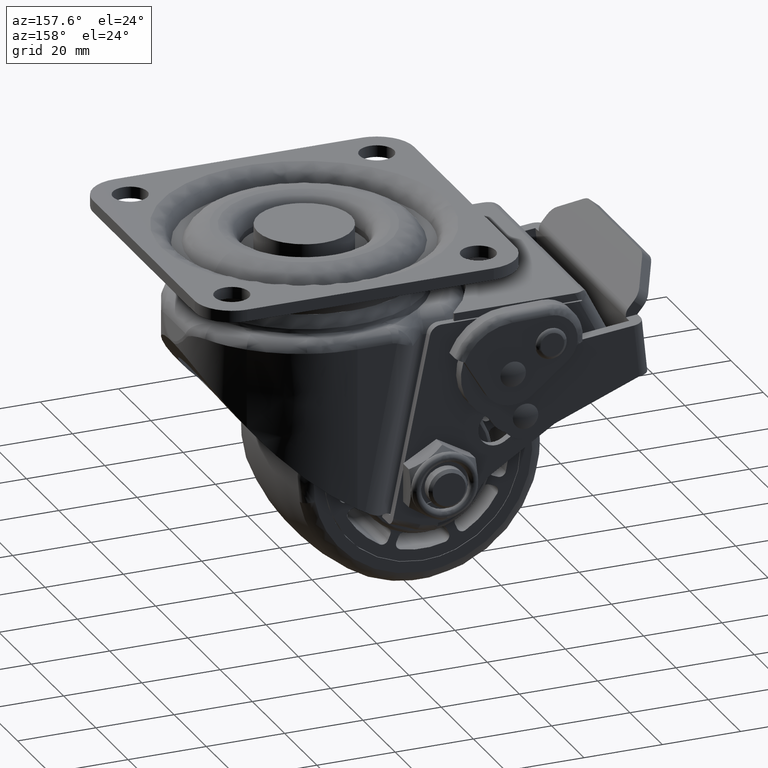
[diagram: clean part render]
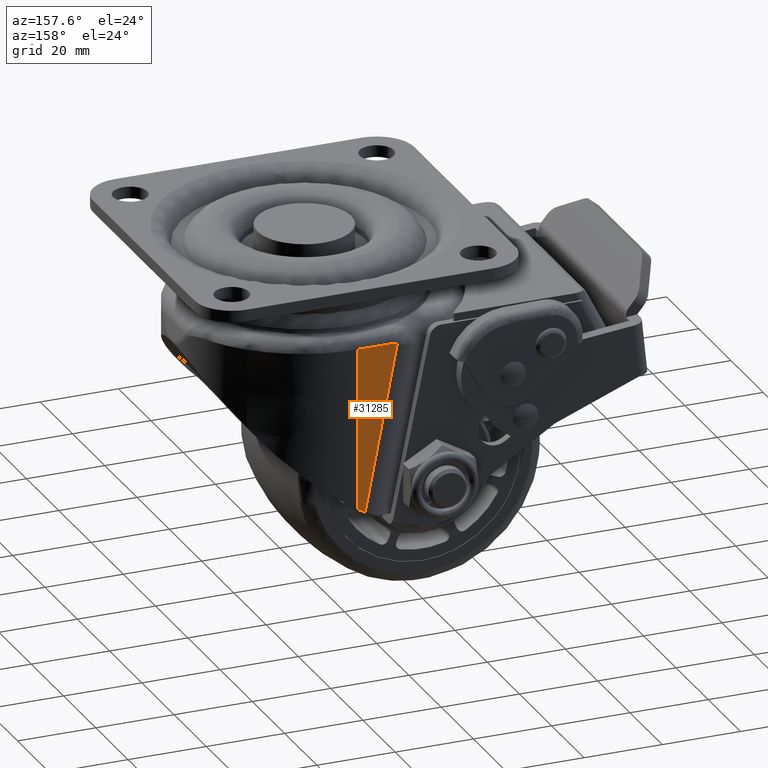
[diagram: same view with one face highlighted and labeled with its STEP entity id]
A machine part, auxiliary view. The second image highlights one B-rep face of the part: STEP entity #31285.
In plain terms, the highlighted face is a freeform B-spline surface patch.
Its self-contained STEP definition (entity closure, byte-faithful):
#28555=CARTESIAN_POINT('',(11.793383256872101,32.873505000000037,38.274537018205500));
#28556=VERTEX_POINT('',#28555);
#28677=CARTESIAN_POINT('',(13.038955079724760,32.873505000000037,38.500000000000000));
#28678=VERTEX_POINT('',#28677);
#28691=CARTESIAN_POINT('',(11.793383256872101,32.873505000000037,38.274537018205500));
#28692=CARTESIAN_POINT('',(12.378968534702141,32.873505000000044,38.500000000000000));
#28693=CARTESIAN_POINT('',(13.038955079724760,32.873505000000037,38.500000000000000));
#28701=(BOUNDED_CURVE()B_SPLINE_CURVE(2,(#28691,#28692,#28693),.UNSPECIFIED.,.F.,.U.)CURVE()GEOMETRIC_REPRESENTATION_ITEM()QUASI_UNIFORM_CURVE()RATIONAL_B_SPLINE_CURVE((1.0,0.971408387111891,1.0))REPRESENTATION_ITEM(''));
#28702=EDGE_CURVE('',#28556,#28678,#28701,.T.);
#28755=CARTESIAN_POINT('',(19.247964568728751,32.873505000000037,38.500000000000000));
#28756=VERTEX_POINT('',#28755);
#28768=CARTESIAN_POINT('',(13.038955079724760,32.873505000000037,38.500000000000000));
#28769=CARTESIAN_POINT('',(19.247964568728751,32.873505000000037,38.500000000000000));
#28770=QUASI_UNIFORM_CURVE('',1,(#28768,#28769),.UNSPECIFIED.,.F.,.U.);
#28771=EDGE_CURVE('',#28678,#28756,#28770,.T.);
#28827=CARTESIAN_POINT('',(22.0,32.873504999999987,38.502668017230249));
#28828=VERTEX_POINT('',#28827);
#28840=CARTESIAN_POINT('',(19.247964568728751,32.873505000000037,38.500000000000000));
#28841=CARTESIAN_POINT('',(22.0,32.873504999999987,38.502668017230249));
#28842=QUASI_UNIFORM_CURVE('',1,(#28840,#28841),.UNSPECIFIED.,.F.,.U.);
#28843=EDGE_CURVE('',#28756,#28828,#28842,.T.);
#30031=CARTESIAN_POINT('',(20.002864117906650,32.873504999997763,-3.959580714461145));
#30032=VERTEX_POINT('',#30031);
#30033=CARTESIAN_POINT('',(20.002864117906650,32.873504999997763,-3.959580714461145));
#30034=CARTESIAN_POINT('',(11.793383256872101,32.873505000000037,38.274537018205500));
#30035=QUASI_UNIFORM_CURVE('',1,(#30033,#30034),.UNSPECIFIED.,.F.,.U.);
#30036=EDGE_CURVE('',#30032,#28556,#30035,.T.);
#31154=CARTESIAN_POINT('',(22.0,32.873504999999987,-2.773755336310885));
#31155=VERTEX_POINT('',#31154);
#31156=CARTESIAN_POINT('',(22.0,32.873504999999987,-2.773755336310885));
#31157=CARTESIAN_POINT('',(22.0,32.873504999999987,38.502668017230249));
#31158=QUASI_UNIFORM_CURVE('',1,(#31156,#31157),.UNSPECIFIED.,.F.,.U.);
#31159=EDGE_CURVE('',#31155,#28828,#31158,.T.);
#31266=CARTESIAN_POINT('',(11.283562770335269,32.873505000000037,-6.080569956309049));
#31267=CARTESIAN_POINT('',(11.283562770335269,32.873505000000037,40.623658398004423));
#31268=CARTESIAN_POINT('',(22.509820760299629,32.873505000000037,-6.080569956309049));
#31269=CARTESIAN_POINT('',(22.509820760299629,32.873505000000037,40.623658398004423));
#31270=B_SPLINE_SURFACE_WITH_KNOTS('',1,1,((#31266,#31268),(#31267,#31269)),.UNSPECIFIED.,.F.,.F.,.U.,(2,2),(2,2),(0.0,46.704228354313457),(0.0,11.226257989964360),.UNSPECIFIED.);
#31271=ORIENTED_EDGE('',*,*,#28771,.T.);
#31272=ORIENTED_EDGE('',*,*,#28843,.T.);
#31273=ORIENTED_EDGE('',*,*,#31159,.F.);
#31274=CARTESIAN_POINT('',(22.0,32.873504999999987,-2.773755336310885));
#31275=CARTESIAN_POINT('',(21.339153401503790,32.873504999998516,-3.177149137220165));
#31276=CARTESIAN_POINT('',(20.673375111295559,32.873504999997799,-3.572463556290311));
#31277=CARTESIAN_POINT('',(20.002864117906650,32.873504999997763,-3.959580714461145));
#31278=B_SPLINE_CURVE_WITH_KNOTS('',3,(#31274,#31275,#31276,#31277),.UNSPECIFIED.,.F.,.U.,(4,4),(6.615597E-012,2.322715330564628),.UNSPECIFIED.);
#31279=EDGE_CURVE('',#31155,#30032,#31278,.T.);
#31280=ORIENTED_EDGE('',*,*,#31279,.T.);
#31281=ORIENTED_EDGE('',*,*,#30036,.T.);
#31282=ORIENTED_EDGE('',*,*,#28702,.T.);
#31283=EDGE_LOOP('',(#31271,#31272,#31273,#31280,#31281,#31282));
#31284=FACE_OUTER_BOUND('',#31283,.T.);
#31285=ADVANCED_FACE('',(#31284),#31270,.T.);